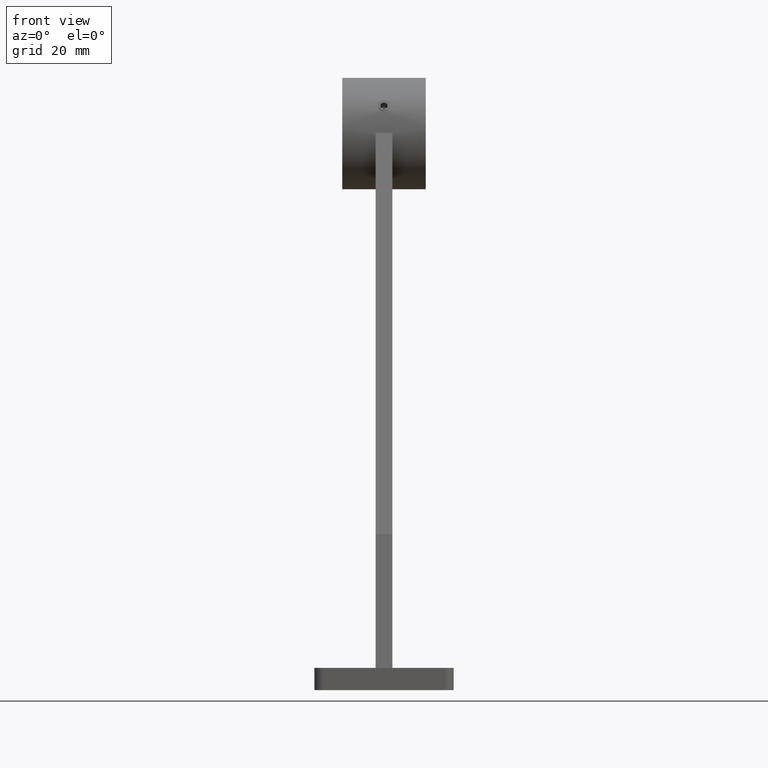
[diagram: clean part render]
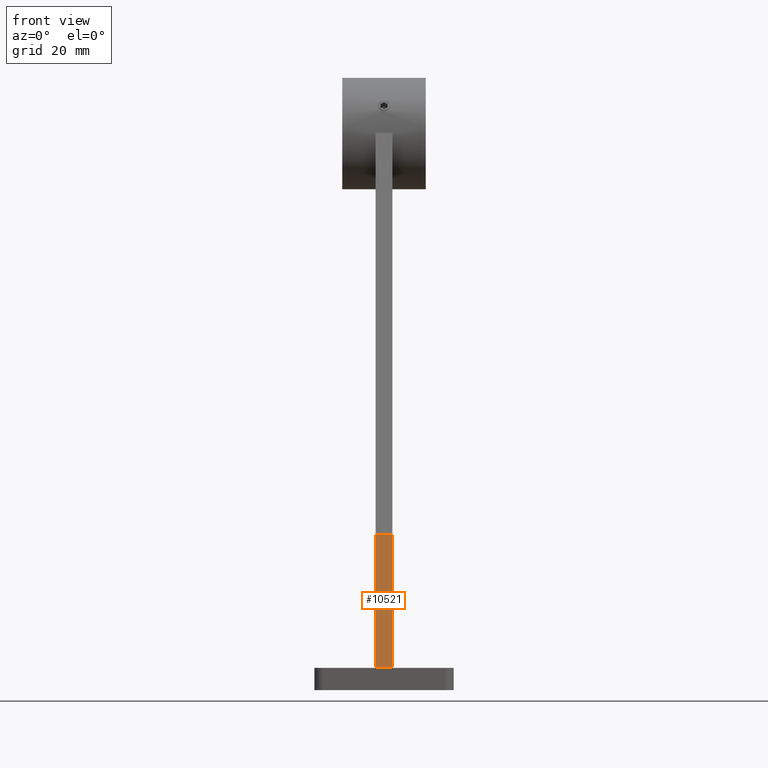
[diagram: same view with one face highlighted and labeled with its STEP entity id]
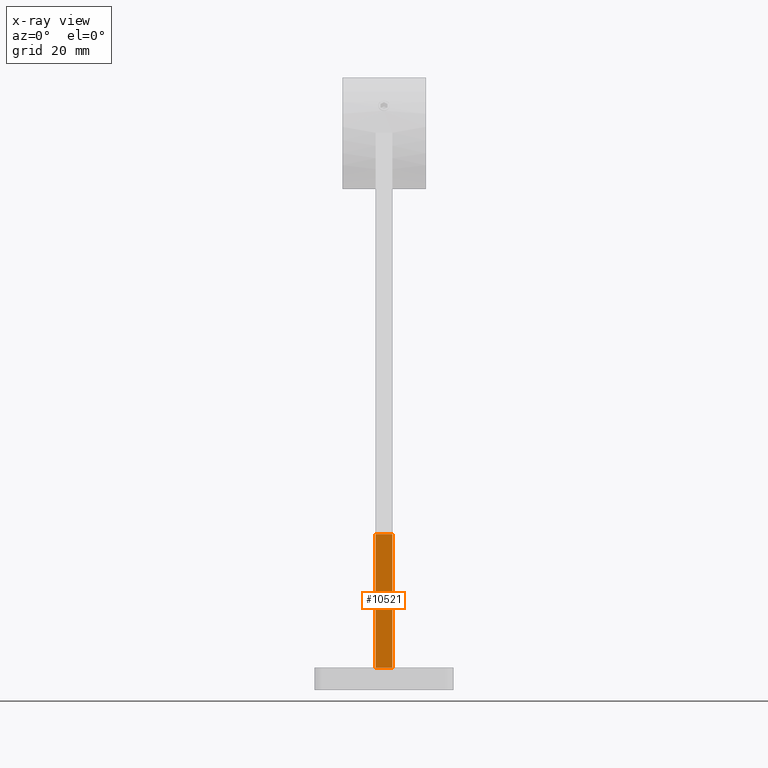
[diagram: x-ray of the same camera — body ghosted, the highlighted face saturated]
A machine part, front view. The second image highlights one B-rep face of the part: STEP entity #10521.
The next image is the same camera in x-ray: the body ghosted, the highlighted face saturated — about 0% of this face is hidden behind the body in this view.
In plain terms, the highlighted planar face has unit normal (0, -0.9781, 0.2079).
Its self-contained STEP definition (entity closure, byte-faithful):
#236 = VECTOR ( 'NONE', #6705, 1000.000000000000114 ) ;
#576 = CARTESIAN_POINT ( 'NONE',  ( -3.000000000000000000, -12.15144658933751742, 2.582869706346549776 ) ) ;
#832 = ORIENTED_EDGE ( 'NONE', *, *, #4855, .T. ) ;
#1254 = ORIENTED_EDGE ( 'NONE', *, *, #8666, .T. ) ;
#1434 = CARTESIAN_POINT ( 'NONE',  ( 3.000000000000000000, -12.15144658933751742, 2.582869706346549776 ) ) ;
#1464 = LINE ( 'NONE', #5053, #12247 ) ;
#2795 = ORIENTED_EDGE ( 'NONE', *, *, #9350, .F. ) ;
#3766 = LINE ( 'NONE', #4885, #7769 ) ;
#3973 = DIRECTION ( 'NONE',  ( -1.000000000000000000, -0.000000000000000000, -0.000000000000000000 ) ) ;
#4091 = VERTEX_POINT ( 'NONE', #10146 ) ;
#4522 = EDGE_LOOP ( 'NONE', ( #2795, #6206, #1254, #832 ) ) ;
#4567 = CARTESIAN_POINT ( 'NONE',  ( 3.000000000000000000, -11.00000000000000355, 8.000000000000000000 ) ) ;
#4855 = EDGE_CURVE ( 'NONE', #4091, #6170, #1464, .T. ) ;
#4885 = CARTESIAN_POINT ( 'NONE',  ( 3.000000000000000000, -11.00000000000000355, 8.000000000000000000 ) ) ;
#5053 = CARTESIAN_POINT ( 'NONE',  ( 3.000000000000000000, -0.7972850398387416604, 56.00000000000000711 ) ) ;
#5167 = DIRECTION ( 'NONE',  ( 0.000000000000000000, -0.9781476007338048007, 0.2079116908177631451 ) ) ;
#6053 = DIRECTION ( 'NONE',  ( -1.000000000000000000, -0.000000000000000000, -0.000000000000000000 ) ) ;
#6170 = VERTEX_POINT ( 'NONE', #9989 ) ;
#6206 = ORIENTED_EDGE ( 'NONE', *, *, #11964, .F. ) ;
#6607 = LINE ( 'NONE', #576, #10164 ) ;
#6705 = DIRECTION ( 'NONE',  ( 0.000000000000000000, 0.2079116908177631451, 0.9781476007338048007 ) ) ;
#7644 = LINE ( 'NONE', #11344, #236 ) ;
#7769 = VECTOR ( 'NONE', #3973, 1000.000000000000000 ) ;
#7945 = DIRECTION ( 'NONE',  ( 0.000000000000000000, -0.2079116908177631451, -0.9781476007338048007 ) ) ;
#8301 = DIRECTION ( 'NONE',  ( 0.000000000000000000, 0.2079116908177631451, 0.9781476007338048007 ) ) ;
#8666 = EDGE_CURVE ( 'NONE', #9476, #4091, #7644, .T. ) ;
#8934 = PLANE ( 'NONE',  #9910 ) ;
#9350 = EDGE_CURVE ( 'NONE', #11802, #6170, #6607, .T. ) ;
#9476 = VERTEX_POINT ( 'NONE', #4567 ) ;
#9704 = FACE_OUTER_BOUND ( 'NONE', #4522, .T. ) ;
#9910 = AXIS2_PLACEMENT_3D ( 'NONE', #1434, #5167, #7945 ) ;
#9989 = CARTESIAN_POINT ( 'NONE',  ( -3.000000000000000000, -0.7972850398387416604, 56.00000000000000711 ) ) ;
#10146 = CARTESIAN_POINT ( 'NONE',  ( 3.000000000000000000, -0.7972850398387416604, 56.00000000000000711 ) ) ;
#10164 = VECTOR ( 'NONE', #8301, 1000.000000000000114 ) ;
#10516 = CARTESIAN_POINT ( 'NONE',  ( -3.000000000000000000, -11.00000000000000355, 8.000000000000000000 ) ) ;
#10521 = ADVANCED_FACE ( 'NONE', ( #9704 ), #8934, .T. ) ;
#11344 = CARTESIAN_POINT ( 'NONE',  ( 3.000000000000000000, -12.15144658933751742, 2.582869706346549776 ) ) ;
#11802 = VERTEX_POINT ( 'NONE', #10516 ) ;
#11964 = EDGE_CURVE ( 'NONE', #9476, #11802, #3766, .T. ) ;
#12247 = VECTOR ( 'NONE', #6053, 1000.000000000000000 ) ;